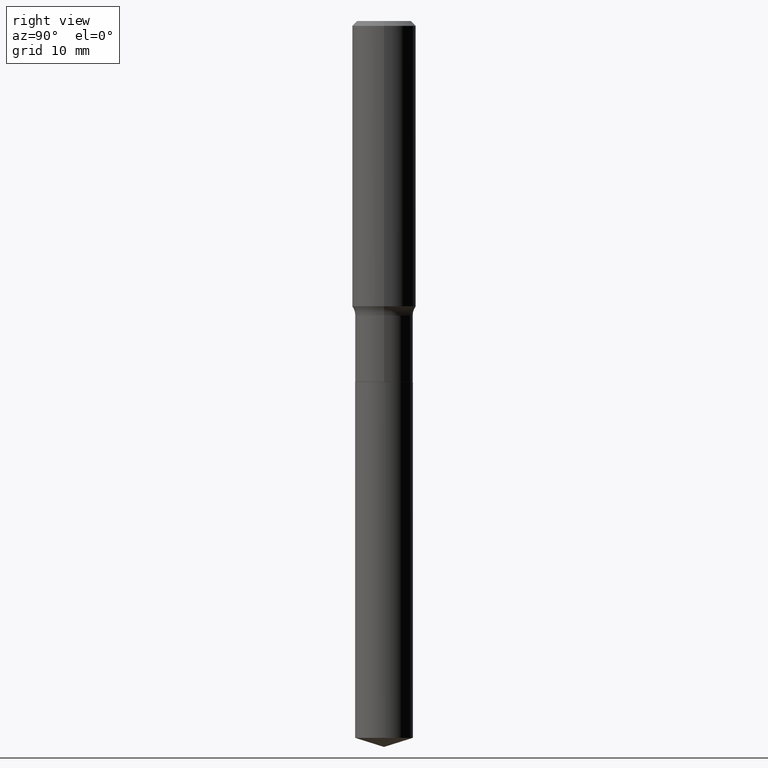
[diagram: clean part render]
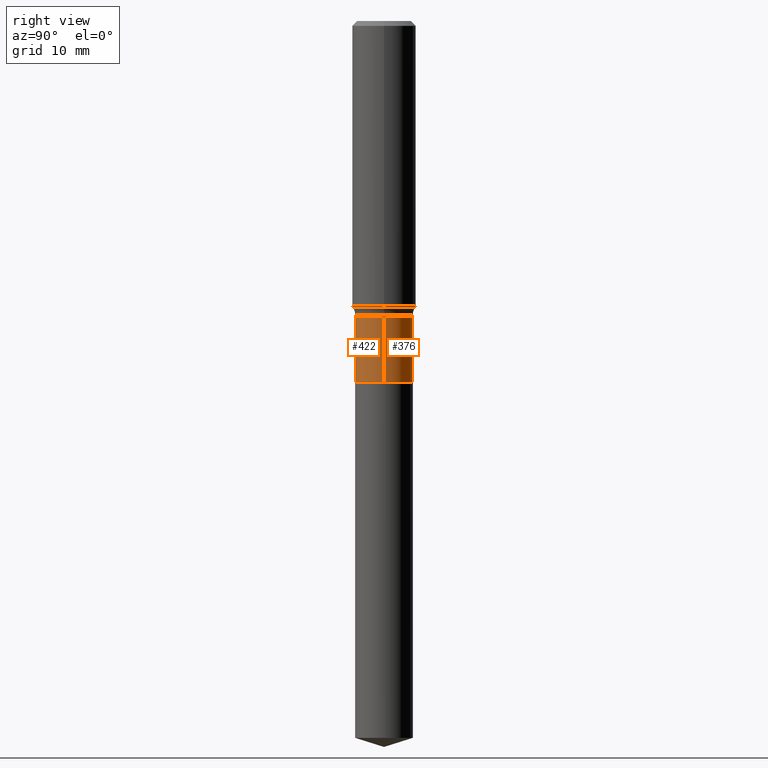
[diagram: same view with one multi-face feature highlighted, each face labeled with its STEP entity id]
A machine part, right view. The highlighted faces form ONE feature: a constant-radius fillet chain: 2 tangent blend faces with common blend radius 3.6246 mm. The faces share edges in the B-rep.
Their STEP definitions:
[1] entity #422 (Cylinder):
#17 = AXIS2_PLACEMENT_3D ( 'NONE', #173, #24, #285 ) ;
#24 = DIRECTION ( 'NONE',  ( -2.445468806185136597E-29, 3.491481338843145583E-15, 1.000000000000000000 ) ) ;
#40 = DIRECTION ( 'NONE',  ( -2.445468806185136597E-29, 3.491481338843145583E-15, 1.000000000000000000 ) ) ;
#46 = ORIENTED_EDGE ( 'NONE', *, *, #339, .F. ) ;
#51 = ORIENTED_EDGE ( 'NONE', *, *, #238, .T. ) ;
#56 = CIRCLE ( 'NONE', #150, 0.1426999999999999658 ) ;
#62 = CARTESIAN_POINT ( 'NONE',  ( -0.1426999999999999658, 1.013944483929662722E-15, -7.019320373793748916E-30 ) ) ;
#79 = CARTESIAN_POINT ( 'NONE',  ( -0.1426999999999999658, -4.632304563180530110E-15, -1.453300000000000036 ) ) ;
#99 = VECTOR ( 'NONE', #223, 39.37007874015748143 ) ;
#118 = CARTESIAN_POINT ( 'NONE',  ( -0.1426999999999999935, -4.632304563180530110E-15, -1.781000000000000583 ) ) ;
#132 = LINE ( 'NONE', #62, #334 ) ;
#140 = EDGE_CURVE ( 'NONE', #174, #275, #56, .T. ) ;
#150 = AXIS2_PLACEMENT_3D ( 'NONE', #189, #40, #308 ) ;
#170 = DIRECTION ( 'NONE',  ( -2.445468806185136877E-29, 3.491481338843145188E-15, 1.000000000000000000 ) ) ;
#173 = CARTESIAN_POINT ( 'NONE',  ( 4.355379943815729283E-29, -6.218328264479644203E-15, -1.781000000000000583 ) ) ;
#174 = VERTEX_POINT ( 'NONE', #79 ) ;
#183 = ORIENTED_EDGE ( 'NONE', *, *, #140, .F. ) ;
#186 = EDGE_CURVE ( 'NONE', #215, #275, #267, .T. ) ;
#189 = CARTESIAN_POINT ( 'NONE',  ( 3.553999816028858649E-29, -5.074169829740743433E-15, -1.453300000000000036 ) ) ;
#206 = VERTEX_POINT ( 'NONE', #118 ) ;
#215 = VERTEX_POINT ( 'NONE', #301 ) ;
#223 = DIRECTION ( 'NONE',  ( -2.445468806185136877E-29, 3.491481338843145188E-15, 1.000000000000000000 ) ) ;
#238 = EDGE_CURVE ( 'NONE', #206, #215, #368, .T. ) ;
#257 = ORIENTED_EDGE ( 'NONE', *, *, #186, .T. ) ;
#267 = LINE ( 'NONE', #338, #99 ) ;
#272 = AXIS2_PLACEMENT_3D ( 'NONE', #489, #326, #364 ) ;
#275 = VERTEX_POINT ( 'NONE', #437 ) ;
#285 = DIRECTION ( 'NONE',  ( 1.000000000000000000, -6.982962677686265133E-15, 0.000000000000000000 ) ) ;
#293 = FACE_OUTER_BOUND ( 'NONE', #421, .T. ) ;
#301 = CARTESIAN_POINT ( 'NONE',  ( 0.1426999999999999935, -7.214797038585473939E-15, -1.781000000000000583 ) ) ;
#308 = DIRECTION ( 'NONE',  ( 1.000000000000000000, -6.982962677686265922E-15, 0.000000000000000000 ) ) ;
#326 = DIRECTION ( 'NONE',  ( -2.445468806185136597E-29, 3.491481338843145583E-15, 1.000000000000000000 ) ) ;
#334 = VECTOR ( 'NONE', #170, 39.37007874015748143 ) ;
#338 = CARTESIAN_POINT ( 'NONE',  ( 0.1426999999999999658, -9.964687741058299330E-16, 6.958304259060799625E-30 ) ) ;
#339 = EDGE_CURVE ( 'NONE', #206, #174, #132, .T. ) ;
#364 = DIRECTION ( 'NONE',  ( 1.000000000000000000, -6.982962677686265922E-15, 4.876176775795936353E-29 ) ) ;
#368 = CIRCLE ( 'NONE', #17, 0.1426999999999999935 ) ;
#421 = EDGE_LOOP ( 'NONE', ( #46, #51, #257, #183 ) ) ;
#422 = ADVANCED_FACE ( 'NONE', ( #293 ), #490, .T. ) ;
#437 = CARTESIAN_POINT ( 'NONE',  ( 0.1426999999999999658, -6.070638603846573168E-15, -1.453300000000000036 ) ) ;
#489 = CARTESIAN_POINT ( 'NONE',  ( 0.000000000000000000, 0.000000000000000000, 0.000000000000000000 ) ) ;
#490 = CYLINDRICAL_SURFACE ( 'NONE', #272, 0.1426999999999999658 ) ;
[2] entity #376 (Cylinder):
#10 = ORIENTED_EDGE ( 'NONE', *, *, #339, .T. ) ;
#21 = DIRECTION ( 'NONE',  ( 1.000000000000000000, -6.982962677686265922E-15, 4.876176775795936353E-29 ) ) ;
#53 = CARTESIAN_POINT ( 'NONE',  ( 3.553999816028858649E-29, -5.074169829740743433E-15, -1.453300000000000036 ) ) ;
#62 = CARTESIAN_POINT ( 'NONE',  ( -0.1426999999999999658, 1.013944483929662722E-15, -7.019320373793748916E-30 ) ) ;
#64 = DIRECTION ( 'NONE',  ( -2.445468806185136597E-29, 3.491481338843145583E-15, 1.000000000000000000 ) ) ;
#79 = CARTESIAN_POINT ( 'NONE',  ( -0.1426999999999999658, -4.632304563180530110E-15, -1.453300000000000036 ) ) ;
#99 = VECTOR ( 'NONE', #223, 39.37007874015748143 ) ;
#103 = DIRECTION ( 'NONE',  ( -2.445468806185136597E-29, 3.491481338843145583E-15, 1.000000000000000000 ) ) ;
#105 = AXIS2_PLACEMENT_3D ( 'NONE', #194, #117, #412 ) ;
#117 = DIRECTION ( 'NONE',  ( -2.445468806185136597E-29, 3.491481338843145583E-15, 1.000000000000000000 ) ) ;
#118 = CARTESIAN_POINT ( 'NONE',  ( -0.1426999999999999935, -4.632304563180530110E-15, -1.781000000000000583 ) ) ;
#131 = EDGE_LOOP ( 'NONE', ( #383, #10, #295, #230 ) ) ;
#132 = LINE ( 'NONE', #62, #334 ) ;
#139 = CYLINDRICAL_SURFACE ( 'NONE', #232, 0.1426999999999999658 ) ;
#170 = DIRECTION ( 'NONE',  ( -2.445468806185136877E-29, 3.491481338843145188E-15, 1.000000000000000000 ) ) ;
#171 = EDGE_CURVE ( 'NONE', #215, #206, #328, .T. ) ;
#174 = VERTEX_POINT ( 'NONE', #79 ) ;
#178 = DIRECTION ( 'NONE',  ( 1.000000000000000000, -6.982962677686265922E-15, 0.000000000000000000 ) ) ;
#186 = EDGE_CURVE ( 'NONE', #215, #275, #267, .T. ) ;
#194 = CARTESIAN_POINT ( 'NONE',  ( 4.355379943815729283E-29, -6.218328264479644203E-15, -1.781000000000000583 ) ) ;
#206 = VERTEX_POINT ( 'NONE', #118 ) ;
#215 = VERTEX_POINT ( 'NONE', #301 ) ;
#223 = DIRECTION ( 'NONE',  ( -2.445468806185136877E-29, 3.491481338843145188E-15, 1.000000000000000000 ) ) ;
#230 = ORIENTED_EDGE ( 'NONE', *, *, #186, .F. ) ;
#232 = AXIS2_PLACEMENT_3D ( 'NONE', #316, #103, #21 ) ;
#267 = LINE ( 'NONE', #338, #99 ) ;
#275 = VERTEX_POINT ( 'NONE', #437 ) ;
#286 = EDGE_CURVE ( 'NONE', #275, #174, #469, .T. ) ;
#295 = ORIENTED_EDGE ( 'NONE', *, *, #286, .F. ) ;
#301 = CARTESIAN_POINT ( 'NONE',  ( 0.1426999999999999935, -7.214797038585473939E-15, -1.781000000000000583 ) ) ;
#316 = CARTESIAN_POINT ( 'NONE',  ( 0.000000000000000000, 0.000000000000000000, 0.000000000000000000 ) ) ;
#328 = CIRCLE ( 'NONE', #105, 0.1426999999999999935 ) ;
#334 = VECTOR ( 'NONE', #170, 39.37007874015748143 ) ;
#338 = CARTESIAN_POINT ( 'NONE',  ( 0.1426999999999999658, -9.964687741058299330E-16, 6.958304259060799625E-30 ) ) ;
#339 = EDGE_CURVE ( 'NONE', #206, #174, #132, .T. ) ;
#376 = ADVANCED_FACE ( 'NONE', ( #439 ), #139, .T. ) ;
#383 = ORIENTED_EDGE ( 'NONE', *, *, #171, .T. ) ;
#399 = AXIS2_PLACEMENT_3D ( 'NONE', #53, #64, #178 ) ;
#412 = DIRECTION ( 'NONE',  ( 1.000000000000000000, -6.982962677686265133E-15, 0.000000000000000000 ) ) ;
#437 = CARTESIAN_POINT ( 'NONE',  ( 0.1426999999999999658, -6.070638603846573168E-15, -1.453300000000000036 ) ) ;
#439 = FACE_OUTER_BOUND ( 'NONE', #131, .T. ) ;
#469 = CIRCLE ( 'NONE', #399, 0.1426999999999999658 ) ;